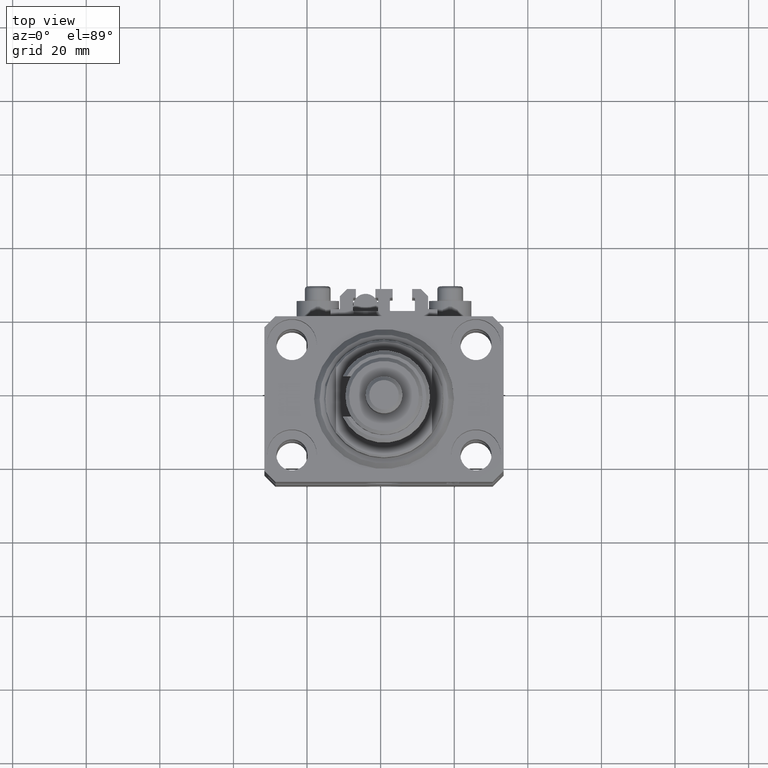
[diagram: clean part render]
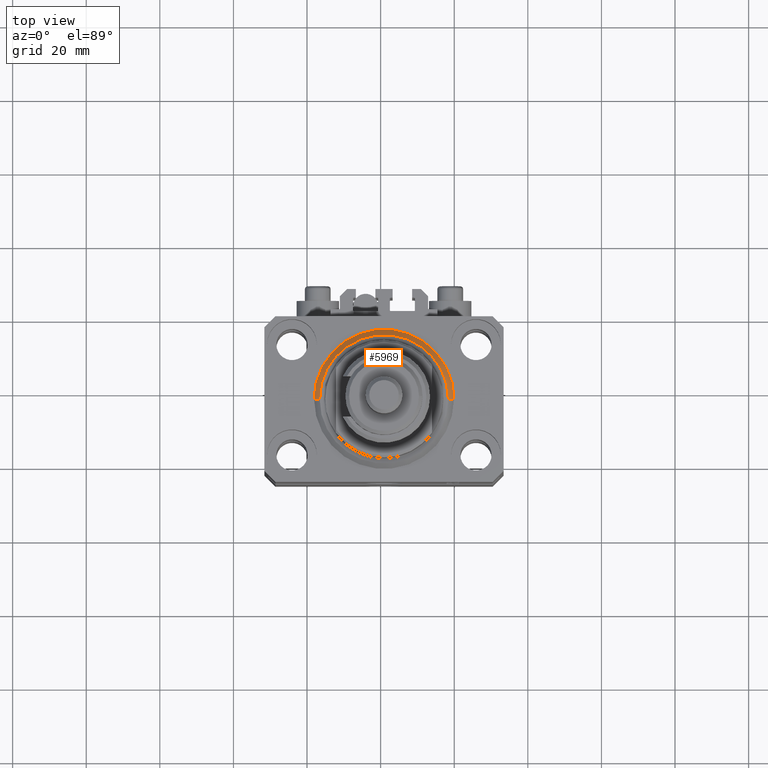
[diagram: same view with one face highlighted and labeled with its STEP entity id]
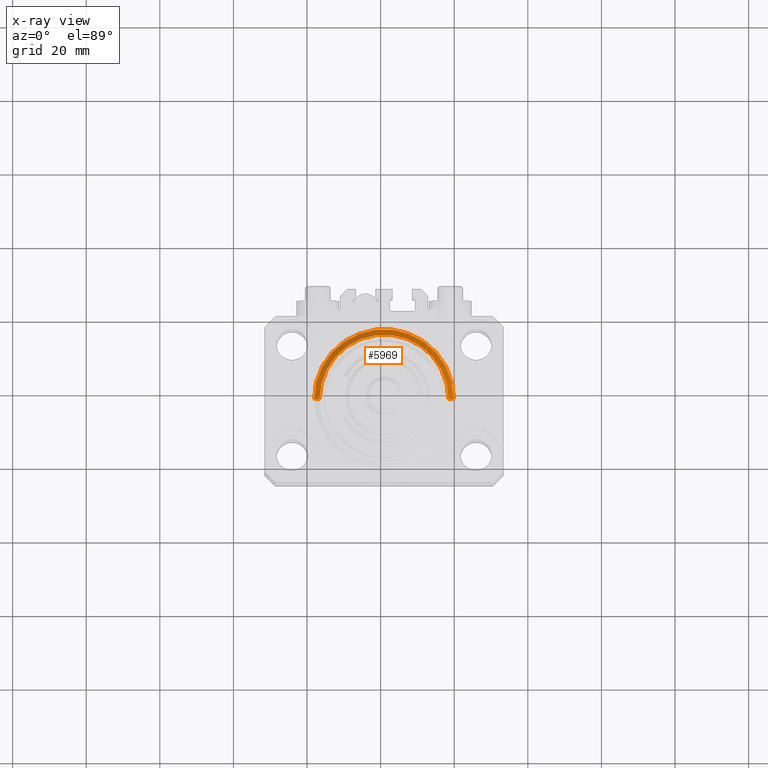
[diagram: x-ray of the same camera — body ghosted, the highlighted face saturated]
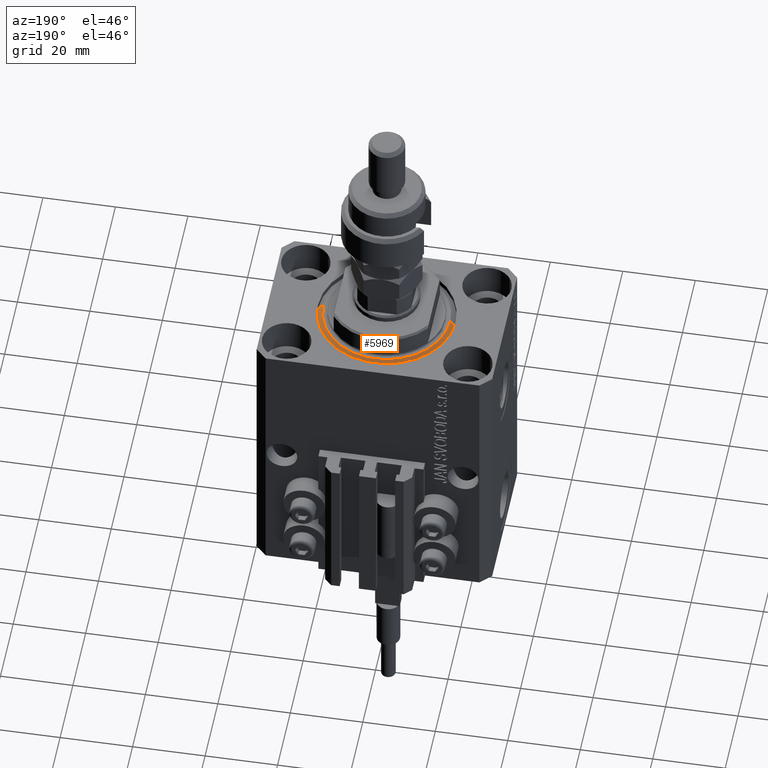
[diagram: same view with one face highlighted and labeled with its STEP entity id]
A machine part, top view. The second image highlights one B-rep face of the part: STEP entity #5969.
The next image is the same camera in x-ray: the body ghosted, the highlighted face saturated — about 0% of this face is hidden behind the body in this view.
A second angle (auxiliary view) of the same face is appended — the face is thin or edge-on in the first view.
In plain terms, the highlighted conical surface has half-angle 45 deg.
Its self-contained STEP definition (entity closure, byte-faithful):
#246 = VERTEX_POINT ( 'NONE', #4272 ) ;
#817 = DIRECTION ( 'NONE',  ( -0.000000000000000000, -0.000000000000000000, 1.000000000000000000 ) ) ;
#2899 = VERTEX_POINT ( 'NONE', #28357 ) ;
#4272 = CARTESIAN_POINT ( 'NONE',  ( -17.49999999999999645, 2.234980408443919215E-15, 0.000000000000000000 ) ) ;
#4760 = EDGE_CURVE ( 'NONE', #246, #23715, #5035, .T. ) ;
#5035 = LINE ( 'NONE', #29666, #48914 ) ;
#5969 = ADVANCED_FACE ( 'NONE', ( #21074 ), #10039, .T. ) ;
#8226 = CARTESIAN_POINT ( 'NONE',  ( 19.00000000000000000, 0.000000000000000000, 1.500000000000001332 ) ) ;
#10039 = CONICAL_SURFACE ( 'NONE', #14213, 19.00000000000000000, 0.7853981633974492782 ) ;
#11039 = CIRCLE ( 'NONE', #29286, 19.00000000000000000 ) ;
#13121 = EDGE_CURVE ( 'NONE', #42291, #23715, #11039, .T. ) ;
#13261 = CARTESIAN_POINT ( 'NONE',  ( -19.00000000000000000, 0.000000000000000000, 1.500000000000001332 ) ) ;
#13722 = EDGE_LOOP ( 'NONE', ( #15776, #40727, #36349, #43419 ) ) ;
#14213 = AXIS2_PLACEMENT_3D ( 'NONE', #41303, #817, #40541 ) ;
#14271 = CARTESIAN_POINT ( 'NONE',  ( 0.000000000000000000, 0.000000000000000000, 1.500000000000001332 ) ) ;
#15771 = LINE ( 'NONE', #8226, #41924 ) ;
#15776 = ORIENTED_EDGE ( 'NONE', *, *, #28689, .F. ) ;
#17615 = DIRECTION ( 'NONE',  ( 1.000000000000000000, 0.000000000000000000, 0.000000000000000000 ) ) ;
#18152 = DIRECTION ( 'NONE',  ( 1.000000000000000000, 0.000000000000000000, 0.000000000000000000 ) ) ;
#21074 = FACE_OUTER_BOUND ( 'NONE', #13722, .T. ) ;
#23715 = VERTEX_POINT ( 'NONE', #13261 ) ;
#28357 = CARTESIAN_POINT ( 'NONE',  ( 17.49999999999999645, 0.000000000000000000, 0.000000000000000000 ) ) ;
#28689 = EDGE_CURVE ( 'NONE', #246, #2899, #44100, .T. ) ;
#29286 = AXIS2_PLACEMENT_3D ( 'NONE', #14271, #39602, #18152 ) ;
#29666 = CARTESIAN_POINT ( 'NONE',  ( -19.00000000000000000, 2.326828918379970970E-15, 1.500000000000001332 ) ) ;
#36349 = ORIENTED_EDGE ( 'NONE', *, *, #13121, .F. ) ;
#36377 = DIRECTION ( 'NONE',  ( -0.000000000000000000, -0.000000000000000000, -1.000000000000000000 ) ) ;
#39602 = DIRECTION ( 'NONE',  ( -0.000000000000000000, -0.000000000000000000, 1.000000000000000000 ) ) ;
#40324 = CARTESIAN_POINT ( 'NONE',  ( 19.00000000000000000, 2.326828918379970970E-15, 1.500000000000001332 ) ) ;
#40470 = EDGE_CURVE ( 'NONE', #2899, #42291, #15771, .T. ) ;
#40541 = DIRECTION ( 'NONE',  ( 1.000000000000000000, 0.000000000000000000, 0.000000000000000000 ) ) ;
#40727 = ORIENTED_EDGE ( 'NONE', *, *, #4760, .T. ) ;
#41303 = CARTESIAN_POINT ( 'NONE',  ( 0.000000000000000000, 0.000000000000000000, 1.500000000000001332 ) ) ;
#41924 = VECTOR ( 'NONE', #51266, 1000.000000000000000 ) ;
#42291 = VERTEX_POINT ( 'NONE', #40324 ) ;
#43419 = ORIENTED_EDGE ( 'NONE', *, *, #40470, .F. ) ;
#43648 = CARTESIAN_POINT ( 'NONE',  ( 0.000000000000000000, 0.000000000000000000, 0.000000000000000000 ) ) ;
#44100 = CIRCLE ( 'NONE', #46584, 17.49999999999999645 ) ;
#44471 = DIRECTION ( 'NONE',  ( -0.7071067811865483499, 8.659560562354942719E-17, 0.7071067811865467956 ) ) ;
#46584 = AXIS2_PLACEMENT_3D ( 'NONE', #43648, #36377, #17615 ) ;
#48914 = VECTOR ( 'NONE', #44471, 1000.000000000000000 ) ;
#51266 = DIRECTION ( 'NONE',  ( 0.7071067811865483499, 0.000000000000000000, 0.7071067811865467956 ) ) ;